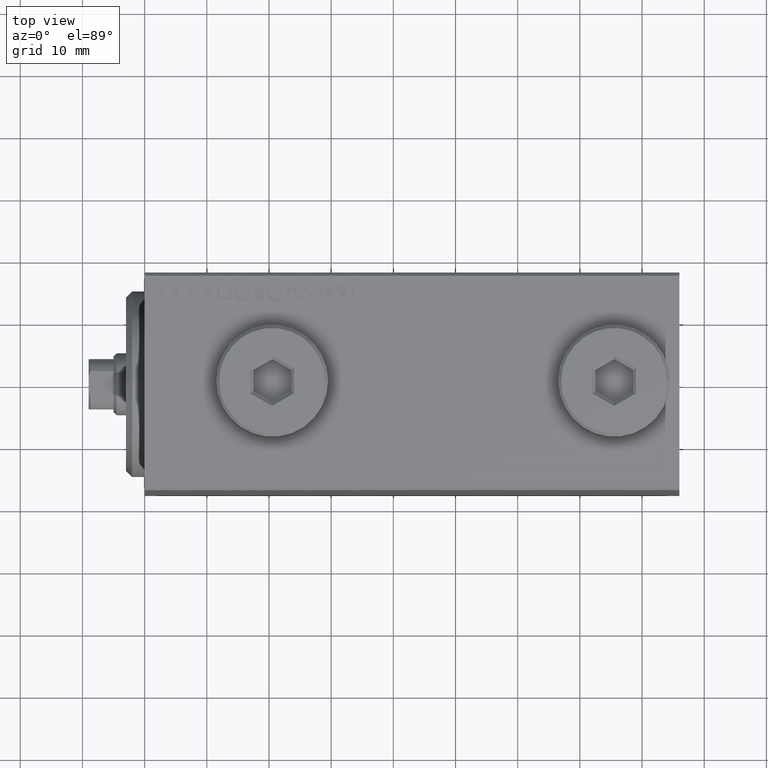
[diagram: clean part render]
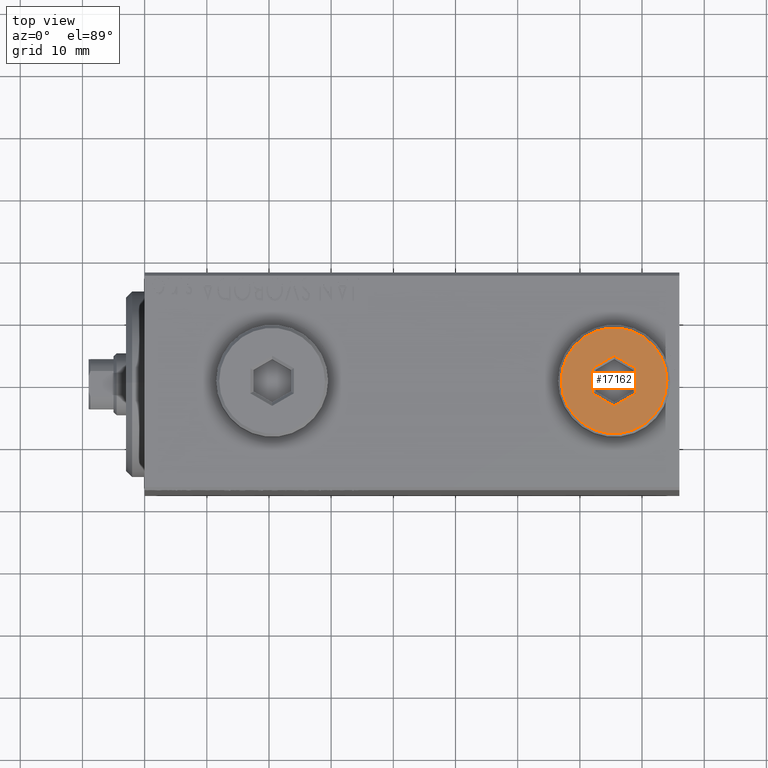
[diagram: same view with one face highlighted and labeled with its STEP entity id]
A machine part, top view. The second image highlights one B-rep face of the part: STEP entity #17162.
In plain terms, the highlighted planar face has unit normal (0, 0, 1).
Its self-contained STEP definition (entity closure, byte-faithful):
#1535 = VERTEX_POINT ( 'NONE', #43432 ) ;
#1582 = CARTESIAN_POINT ( 'NONE',  ( 3.500000000000006661, -2.020725942163693833, 5.000000000000000000 ) ) ;
#1691 = DIRECTION ( 'NONE',  ( 1.000000000000000000, 0.000000000000000000, 0.000000000000000000 ) ) ;
#1718 = LINE ( 'NONE', #43613, #16067 ) ;
#2388 = CARTESIAN_POINT ( 'NONE',  ( 0.000000000000000000, 0.000000000000000000, 5.000000000000000000 ) ) ;
#3762 = DIRECTION ( 'NONE',  ( 0.8660254037844387076, 0.4999999999999998335, 0.000000000000000000 ) ) ;
#6249 = PLANE ( 'NONE',  #16093 ) ;
#6489 = FACE_BOUND ( 'NONE', #26063, .T. ) ;
#7420 = EDGE_CURVE ( 'NONE', #39362, #10260, #38972, .T. ) ;
#7433 = CARTESIAN_POINT ( 'NONE',  ( -0.2500000000000027756, 3.897114317029978459, 5.000000000000000000 ) ) ;
#7779 = ORIENTED_EDGE ( 'NONE', *, *, #41872, .T. ) ;
#7868 = CARTESIAN_POINT ( 'NONE',  ( 3.500000000000006661, -1.732050807568878303, 5.000000000000000000 ) ) ;
#8782 = ORIENTED_EDGE ( 'NONE', *, *, #7420, .T. ) ;
#9049 = DIRECTION ( 'NONE',  ( 0.000000000000000000, 0.000000000000000000, 1.000000000000000000 ) ) ;
#10094 = ORIENTED_EDGE ( 'NONE', *, *, #43854, .T. ) ;
#10238 = VERTEX_POINT ( 'NONE', #1582 ) ;
#10260 = VERTEX_POINT ( 'NONE', #26160 ) ;
#10384 = FACE_OUTER_BOUND ( 'NONE', #16995, .T. ) ;
#11315 = ORIENTED_EDGE ( 'NONE', *, *, #29710, .T. ) ;
#12056 = DIRECTION ( 'NONE',  ( -0.8660254037844385966, 0.4999999999999999445, 0.000000000000000000 ) ) ;
#13978 = VERTEX_POINT ( 'NONE', #17568 ) ;
#15165 = VECTOR ( 'NONE', #3762, 1000.000000000000000 ) ;
#16067 = VECTOR ( 'NONE', #12056, 1000.000000000000114 ) ;
#16093 = AXIS2_PLACEMENT_3D ( 'NONE', #20256, #34322, #20492 ) ;
#16431 = VERTEX_POINT ( 'NONE', #34201 ) ;
#16872 = VERTEX_POINT ( 'NONE', #34376 ) ;
#16899 = DIRECTION ( 'NONE',  ( 0.000000000000000000, 1.000000000000000000, 0.000000000000000000 ) ) ;
#16995 = EDGE_LOOP ( 'NONE', ( #7779, #36366 ) ) ;
#17162 = ADVANCED_FACE ( 'NONE', ( #6489, #10384 ), #6249, .T. ) ;
#17329 = VECTOR ( 'NONE', #25303, 1000.000000000000000 ) ;
#17568 = CARTESIAN_POINT ( 'NONE',  ( -3.500000000000006661, -2.020725942163694278, 5.000000000000000000 ) ) ;
#20256 = CARTESIAN_POINT ( 'NONE',  ( 0.000000000000000000, 0.000000000000000000, 5.000000000000000000 ) ) ;
#20330 = CARTESIAN_POINT ( 'NONE',  ( -3.500000000000006661, 1.732050807568878081, 5.000000000000000000 ) ) ;
#20492 = DIRECTION ( 'NONE',  ( 1.000000000000000000, 0.000000000000000000, -0.000000000000000000 ) ) ;
#22615 = VERTEX_POINT ( 'NONE', #45503 ) ;
#23287 = DIRECTION ( 'NONE',  ( 1.000000000000000000, 0.000000000000000000, 0.000000000000000000 ) ) ;
#23412 = CARTESIAN_POINT ( 'NONE',  ( -3.500000000000006661, 2.020725942163692945, 5.000000000000000000 ) ) ;
#25303 = DIRECTION ( 'NONE',  ( 0.8660254037844387076, -0.4999999999999998890, 0.000000000000000000 ) ) ;
#26005 = LINE ( 'NONE', #7868, #26030 ) ;
#26030 = VECTOR ( 'NONE', #43333, 1000.000000000000000 ) ;
#26057 = AXIS2_PLACEMENT_3D ( 'NONE', #2388, #9049, #23287 ) ;
#26063 = EDGE_LOOP ( 'NONE', ( #27802, #8782, #31240, #11315, #30822, #10094 ) ) ;
#26160 = CARTESIAN_POINT ( 'NONE',  ( 1.590596867181068292E-15, 4.041451884327386779, 5.000000000000000000 ) ) ;
#26955 = CARTESIAN_POINT ( 'NONE',  ( 0.000000000000000000, 0.000000000000000000, 5.000000000000000000 ) ) ;
#27590 = EDGE_CURVE ( 'NONE', #13978, #39362, #44565, .T. ) ;
#27802 = ORIENTED_EDGE ( 'NONE', *, *, #27590, .T. ) ;
#28093 = CARTESIAN_POINT ( 'NONE',  ( 3.250000000000003109, 2.165063509461103042, 5.000000000000000000 ) ) ;
#29710 = EDGE_CURVE ( 'NONE', #16872, #10238, #26005, .T. ) ;
#30822 = ORIENTED_EDGE ( 'NONE', *, *, #36372, .T. ) ;
#31240 = ORIENTED_EDGE ( 'NONE', *, *, #38025, .T. ) ;
#31573 = LINE ( 'NONE', #28093, #17329 ) ;
#32152 = AXIS2_PLACEMENT_3D ( 'NONE', #26955, #41268, #1691 ) ;
#32514 = CARTESIAN_POINT ( 'NONE',  ( 0.2500000000000027756, -3.897114317029979347, 5.000000000000000000 ) ) ;
#32876 = CIRCLE ( 'NONE', #32152, 8.500000000000010658 ) ;
#34053 = EDGE_CURVE ( 'NONE', #1535, #22615, #41550, .T. ) ;
#34201 = CARTESIAN_POINT ( 'NONE',  ( -1.006139216460143630E-15, -4.041451884327387667, 5.000000000000000000 ) ) ;
#34322 = DIRECTION ( 'NONE',  ( 0.000000000000000000, 0.000000000000000000, 1.000000000000000000 ) ) ;
#34376 = CARTESIAN_POINT ( 'NONE',  ( 3.500000000000006661, 2.020725942163694722, 5.000000000000000000 ) ) ;
#36302 = VECTOR ( 'NONE', #16899, 1000.000000000000000 ) ;
#36366 = ORIENTED_EDGE ( 'NONE', *, *, #34053, .T. ) ;
#36372 = EDGE_CURVE ( 'NONE', #10238, #16431, #39001, .T. ) ;
#38025 = EDGE_CURVE ( 'NONE', #10260, #16872, #31573, .T. ) ;
#38972 = LINE ( 'NONE', #7433, #15165 ) ;
#39001 = LINE ( 'NONE', #32514, #45315 ) ;
#39362 = VERTEX_POINT ( 'NONE', #23412 ) ;
#41268 = DIRECTION ( 'NONE',  ( 0.000000000000000000, 0.000000000000000000, 1.000000000000000000 ) ) ;
#41550 = CIRCLE ( 'NONE', #26057, 8.500000000000010658 ) ;
#41872 = EDGE_CURVE ( 'NONE', #22615, #1535, #32876, .T. ) ;
#42680 = DIRECTION ( 'NONE',  ( -0.8660254037844387076, -0.4999999999999998890, 0.000000000000000000 ) ) ;
#43333 = DIRECTION ( 'NONE',  ( 0.000000000000000000, -1.000000000000000000, 0.000000000000000000 ) ) ;
#43432 = CARTESIAN_POINT ( 'NONE',  ( 8.500000000000010658, 1.071565949253934716E-15, 5.000000000000000000 ) ) ;
#43613 = CARTESIAN_POINT ( 'NONE',  ( -3.250000000000003109, -2.165063509461102598, 5.000000000000000000 ) ) ;
#43854 = EDGE_CURVE ( 'NONE', #16431, #13978, #1718, .T. ) ;
#44565 = LINE ( 'NONE', #20330, #36302 ) ;
#45315 = VECTOR ( 'NONE', #42680, 1000.000000000000000 ) ;
#45503 = CARTESIAN_POINT ( 'NONE',  ( -8.500000000000010658, 0.000000000000000000, 5.000000000000000000 ) ) ;